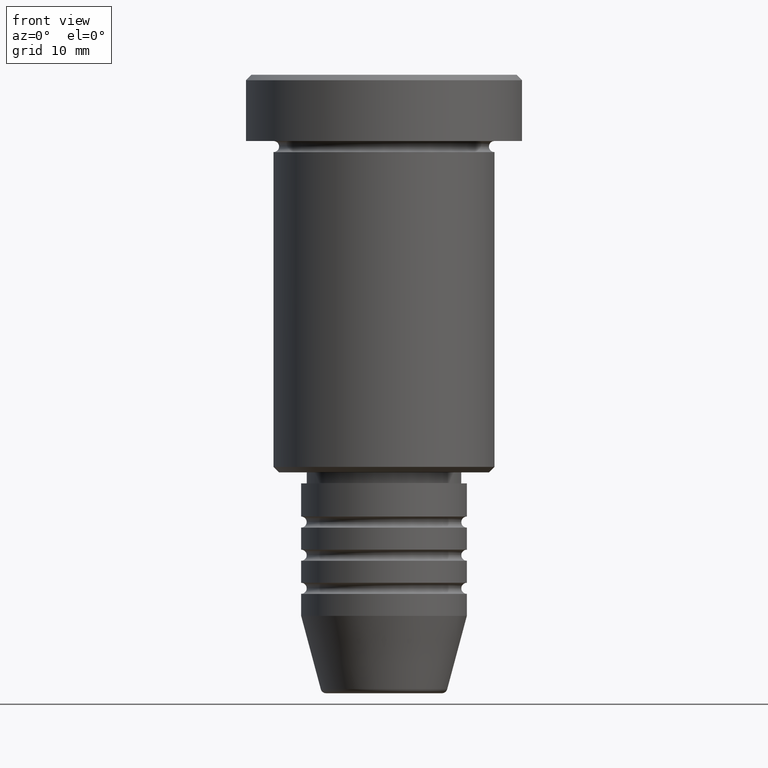
[diagram: clean part render]
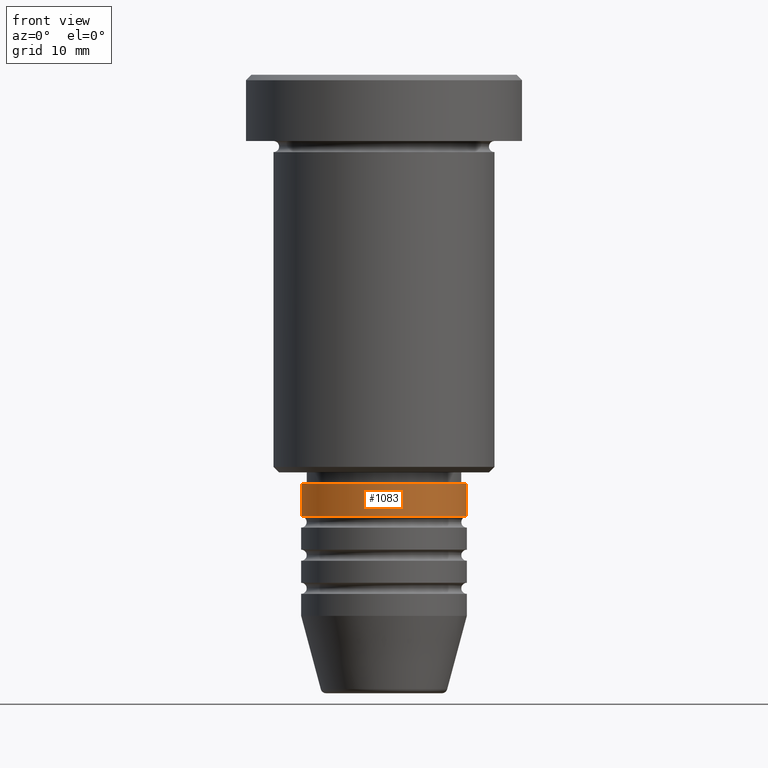
[diagram: same view with one face highlighted and labeled with its STEP entity id]
A machine part, front view. The second image highlights one B-rep face of the part: STEP entity #1083.
In plain terms, the highlighted cylindrical surface (partial cylindrical patch) has radius 7.5 mm, axis along (-0, -0, 1).
Its self-contained STEP definition (entity closure, byte-faithful):
#19 = DIRECTION ( 'NONE',  ( 1.000000000000000000, 0.000000000000000000, 0.000000000000000000 ) ) ;
#63 = AXIS2_PLACEMENT_3D ( 'NONE', #939, #758, #19 ) ;
#64 = DIRECTION ( 'NONE',  ( -0.000000000000000000, -0.000000000000000000, 1.000000000000000000 ) ) ;
#83 = LINE ( 'NONE', #1178, #1070 ) ;
#134 = FACE_OUTER_BOUND ( 'NONE', #847, .T. ) ;
#277 = DIRECTION ( 'NONE',  ( -0.000000000000000000, -0.000000000000000000, 1.000000000000000000 ) ) ;
#295 = DIRECTION ( 'NONE',  ( -0.000000000000000000, -0.000000000000000000, 1.000000000000000000 ) ) ;
#332 = VERTEX_POINT ( 'NONE', #1131 ) ;
#339 = LINE ( 'NONE', #1062, #519 ) ;
#381 = VERTEX_POINT ( 'NONE', #871 ) ;
#429 = DIRECTION ( 'NONE',  ( 1.000000000000000000, 0.000000000000000000, 0.000000000000000000 ) ) ;
#467 = EDGE_CURVE ( 'NONE', #332, #773, #339, .T. ) ;
#487 = EDGE_CURVE ( 'NONE', #332, #381, #877, .T. ) ;
#501 = DIRECTION ( 'NONE',  ( 1.000000000000000000, 0.000000000000000000, 0.000000000000000000 ) ) ;
#519 = VECTOR ( 'NONE', #708, 1000.000000000000000 ) ;
#580 = CYLINDRICAL_SURFACE ( 'NONE', #63, 7.500000000000000000 ) ;
#594 = EDGE_CURVE ( 'NONE', #381, #1159, #83, .T. ) ;
#608 = ORIENTED_EDGE ( 'NONE', *, *, #594, .T. ) ;
#692 = CARTESIAN_POINT ( 'NONE',  ( 7.500000000000000000, 0.000000000000000000, -37.00000000000000000 ) ) ;
#708 = DIRECTION ( 'NONE',  ( -0.000000000000000000, -0.000000000000000000, 1.000000000000000000 ) ) ;
#748 = CARTESIAN_POINT ( 'NONE',  ( 0.000000000000000000, 0.000000000000000000, -37.00000000000000000 ) ) ;
#754 = CARTESIAN_POINT ( 'NONE',  ( -7.500000000000000000, 9.184850993605147944E-16, -37.00000000000000000 ) ) ;
#758 = DIRECTION ( 'NONE',  ( -0.000000000000000000, -0.000000000000000000, 1.000000000000000000 ) ) ;
#763 = ORIENTED_EDGE ( 'NONE', *, *, #1027, .F. ) ;
#773 = VERTEX_POINT ( 'NONE', #754 ) ;
#847 = EDGE_LOOP ( 'NONE', ( #1053, #1117, #608, #763 ) ) ;
#871 = CARTESIAN_POINT ( 'NONE',  ( 7.500000000000000000, 0.000000000000000000, -39.99999999999997158 ) ) ;
#877 = CIRCLE ( 'NONE', #1128, 7.500000000000000000 ) ;
#879 = CARTESIAN_POINT ( 'NONE',  ( 0.000000000000000000, 0.000000000000000000, -39.99999999999997158 ) ) ;
#939 = CARTESIAN_POINT ( 'NONE',  ( 0.000000000000000000, 0.000000000000000000, 0.000000000000000000 ) ) ;
#1027 = EDGE_CURVE ( 'NONE', #773, #1159, #1167, .T. ) ;
#1053 = ORIENTED_EDGE ( 'NONE', *, *, #467, .F. ) ;
#1062 = CARTESIAN_POINT ( 'NONE',  ( -7.500000000000000000, 9.184850993605147944E-16, 0.000000000000000000 ) ) ;
#1070 = VECTOR ( 'NONE', #277, 1000.000000000000000 ) ;
#1072 = AXIS2_PLACEMENT_3D ( 'NONE', #748, #295, #501 ) ;
#1083 = ADVANCED_FACE ( 'NONE', ( #134 ), #580, .T. ) ;
#1117 = ORIENTED_EDGE ( 'NONE', *, *, #487, .T. ) ;
#1128 = AXIS2_PLACEMENT_3D ( 'NONE', #879, #64, #429 ) ;
#1131 = CARTESIAN_POINT ( 'NONE',  ( -7.500000000000000000, 9.184850993605147944E-16, -39.99999999999997158 ) ) ;
#1159 = VERTEX_POINT ( 'NONE', #692 ) ;
#1167 = CIRCLE ( 'NONE', #1072, 7.500000000000000000 ) ;
#1178 = CARTESIAN_POINT ( 'NONE',  ( 7.500000000000000000, 0.000000000000000000, 0.000000000000000000 ) ) ;